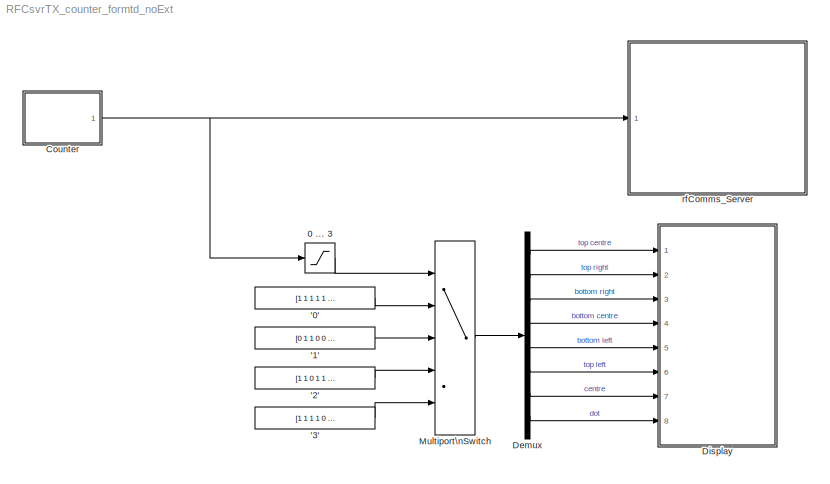
MODEL RFCsvrTX_counter_formtd_noExt
KIND model
BLOCK [Constant] '0'
  OutDataTypeStr = double
  SID = 1
  Value = [1 1 1 1 1 1 0 1]
BLOCK [Constant] '1'
  OutDataTypeStr = double
  SID = 2
  Value = [0 1 1 0 0 0 0 0]
BLOCK [Constant] '2'
  OutDataTypeStr = double
  SID = 3
  Value = [1 1 0 1 1 0 1 1]
BLOCK [Constant] '3'
  OutDataTypeStr = double
  SID = 4
  Value = [1 1 1 1 0 0 1 1]
BLOCK [Saturate] 0 ... 3
  InputPortMap = u0
  LowerLimit = 0
  Ports = [1, 1]
  SID = 5
  UpperLimit = 3
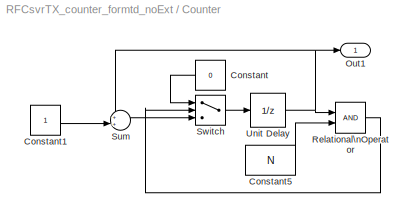
BLOCK [SubSystem] Counter
  Ports = [0, 1]
  RequestExecContextInheritance = off
  SID = 6
BLOCK [Constant] Counter/Constant
  SID = 7
  Value = 0
BLOCK [Constant] Counter/Constant1
  SID = 8
BLOCK [Constant] Counter/Constant5
  SID = 9
  Value = N
BLOCK [Outport] Counter/Out1
  IconDisplay = Port number
  SID = 14
BLOCK [RelationalOperator] Counter/Relational\nOperator
  InputSameDT = off
  OutDataTypeStr = uint(8)
  Ports = [2, 1]
  SID = 10
BLOCK [Sum] Counter/Sum
  IconShape = round
  InputSameDT = off
  Inputs = ++|
  OutDataTypeStr = Inherit: Inherit via internal rule
  Ports = [2, 1]
  SID = 11
  SaturateOnIntegerOverflow = off
BLOCK [Switch] Counter/Switch
  Criteria = u2 > Threshold
  InputSameDT = off
  SID = 12
  SaturateOnIntegerOverflow = off
BLOCK [UnitDelay] Counter/Unit Delay
  SID = 13
  SampleTime = Ts
BLOCK [Demux] Demux
  Outputs = 8
  Ports = [1, 8]
  SID = 15
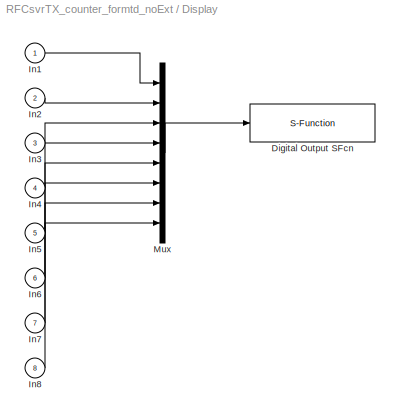
BLOCK [SubSystem] Display
  Ports = [8]
  RequestExecContextInheritance = off
  SID = 16
  ShowPortLabels = none
  Tag = mcTarget_digOut
BLOCK [S-Function] Display/Digital Output SFcn
  EnableBusSupport = off
  FunctionName = digOut_sfcn_9S12
  Parameters = sampletime, port, pins, Von, Voff
  Ports = [1]
  SFcnIsStateOwnerBlock = off
  SFunctionDeploymentMode = off
  SID = 16:9
  Tag = mcTarget_digOut
BLOCK [Inport] Display/In1
  IconDisplay = Port number
  SID = 16:1
BLOCK [Inport] Display/In2
  IconDisplay = Port number
  Port = 2
  SID = 16:2
BLOCK [Inport] Display/In3
  IconDisplay = Port number
  Port = 3
  SID = 16:3
BLOCK [Inport] Display/In4
  IconDisplay = Port number
  Port = 4
  SID = 16:4
BLOCK [Inport] Display/In5
  IconDisplay = Port number
  Port = 5
  SID = 16:5
BLOCK [Inport] Display/In6
  IconDisplay = Port number
  Port = 6
  SID = 16:6
BLOCK [Inport] Display/In7
  IconDisplay = Port number
  Port = 7
  SID = 16:7
BLOCK [Inport] Display/In8
  IconDisplay = Port number
  Port = 8
  SID = 16:8
BLOCK [Mux] Display/Mux
  DisplayOption = bar
  Inputs = 8
  Ports = [8, 1]
  SID = 16:10
BLOCK [MultiPortSwitch] Multiport\nSwitch
  DataPortOrder = Zero-based contiguous
  InputSameDT = off
  Inputs = 4
  Ports = [5, 1]
  SID = 17
  zeroidx = on
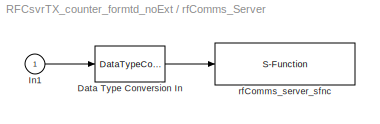
BLOCK [SubSystem] rfComms_Server
  Ports = [1]
  RequestExecContextInheritance = off
  SID = 19
  ShowPortLabels = none
  Tag = mcTarget_rfCommsSrv
BLOCK [DataTypeConversion] rfComms_Server/Data Type Conversion In
  OutDataTypeStr = uint8
  SID = 19:21
BLOCK [Inport] rfComms_Server/In1
  IconDisplay = Port number
  SID = 19:20
BLOCK [S-Function] rfComms_Server/rfComms_server_sfnc
  EnableBusSupport = off
  FunctionName = rfComms_server
  Parameters = sampletime, RXTXmode, channel, buf_size, data_type
  Ports = [1]
  SFcnIsStateOwnerBlock = off
  SFunctionDeploymentMode = off
  SID = 19:22
  Tag = mcTarget_rfCommsSrv
LINE '0':1 -> Multiport\nSwitch:2
LINE '1':1 -> Multiport\nSwitch:3
LINE '2':1 -> Multiport\nSwitch:4
LINE '3':1 -> Multiport\nSwitch:5
LINE 0 ... 3:1 -> Multiport\nSwitch:1
LINE Counter/Constant1:1 -> Counter/Sum:2
LINE Counter/Constant5:1 -> Counter/Relational\nOperator:2
LINE Counter/Constant:1 -> Counter/Switch:1
LINE Counter/Relational\nOperator:1 -> Counter/Switch:2
LINE Counter/Sum:1 -> Counter/Switch:3
LINE Counter/Switch:1 -> Counter/Unit Delay:1
NET Counter/Unit Delay:1 -> Counter/Out1:1, Counter/Relational\nOperator:1, Counter/Sum:1
NET Counter:1 -> 0 ... 3:1, rfComms_Server:1
LINE Demux:1 -> Display:1
LINE Demux:2 -> Display:2
LINE Demux:3 -> Display:3
LINE Demux:4 -> Display:4
LINE Demux:5 -> Display:5
LINE Demux:6 -> Display:6
LINE Demux:7 -> Display:7
LINE Demux:8 -> Display:8
LINE Display/In1:1 -> Display/Mux:1
LINE Display/In2:1 -> Display/Mux:2
LINE Display/In3:1 -> Display/Mux:3
LINE Display/In4:1 -> Display/Mux:4
LINE Display/In5:1 -> Display/Mux:5
LINE Display/In6:1 -> Display/Mux:6
LINE Display/In7:1 -> Display/Mux:7
LINE Display/In8:1 -> Display/Mux:8
LINE Display/Mux:1 -> Display/Digital Output SFcn:1
LINE Multiport\nSwitch:1 -> Demux:1
LINE rfComms_Server/Data Type Conversion In:1 -> rfComms_Server/rfComms_server_sfnc:1
LINE rfComms_Server/In1:1 -> rfComms_Server/Data Type Conversion In:1
note: NET lines group one-source signal fan-out (src -> all destinations, sorted); 1:1 wires keep LINE
